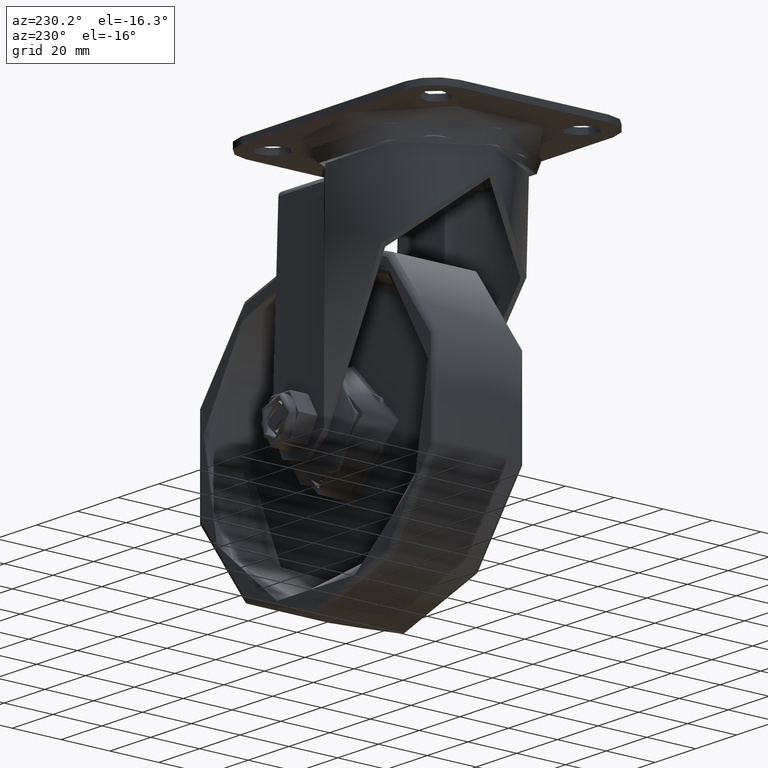
[diagram: clean part render]
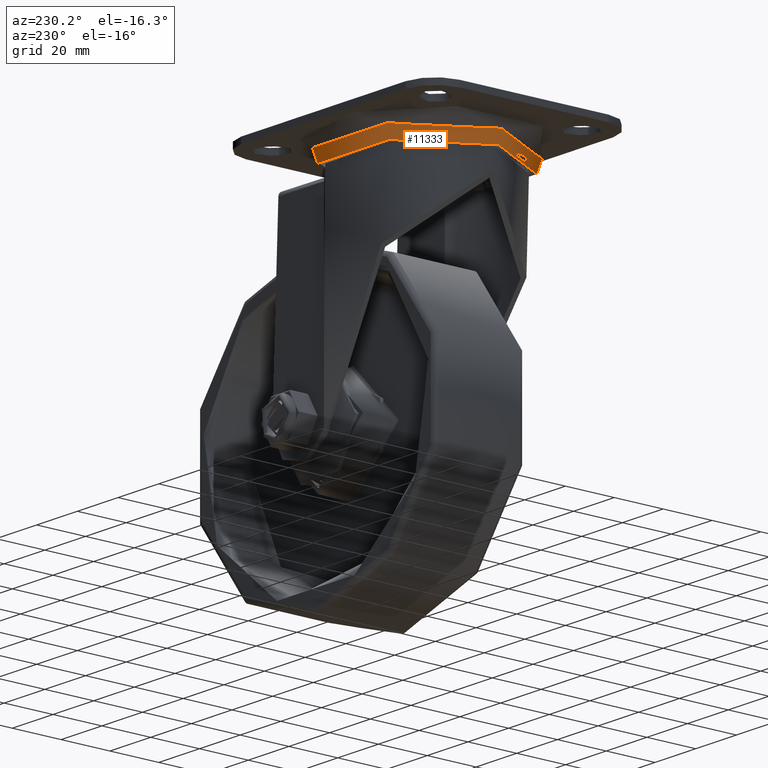
[diagram: same view with one face highlighted and labeled with its STEP entity id]
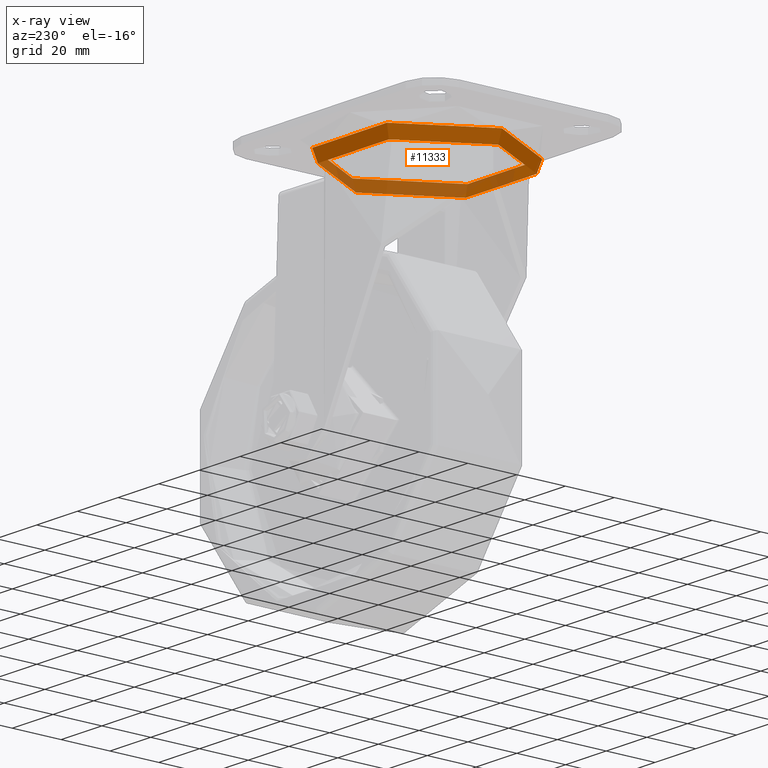
[diagram: x-ray of the same camera — body ghosted, the highlighted face saturated]
A machine part, auxiliary view. The second image highlights one B-rep face of the part: STEP entity #11333.
The next image is the same camera in x-ray: the body ghosted, the highlighted face saturated — about 32% of this face is hidden behind the body in this view.
In plain terms, the highlighted conical surface has half-angle 19.29 deg.
Its self-contained STEP definition (entity closure, byte-faithful):
#1374=CONICAL_SURFACE('',#12279,35.846929178183,0.336674819386727);
#1519=FACE_OUTER_BOUND('',#2245,.T.);
#2245=EDGE_LOOP('',(#8236,#8237,#8238,#8239));
#3108=LINE('',#17089,#3850);
#3850=VECTOR('',#13625,35.846929178183);
#4513=CIRCLE('',#12273,36.721929178183);
#4516=CIRCLE('',#12278,34.971929178183);
#5046=VERTEX_POINT('',#17075);
#5049=VERTEX_POINT('',#17085);
#6256=EDGE_CURVE('',#5046,#5046,#4513,.T.);
#6262=EDGE_CURVE('',#5049,#5049,#4516,.T.);
#6263=EDGE_CURVE('',#5046,#5049,#3108,.T.);
#8236=ORIENTED_EDGE('',*,*,#6256,.T.);
#8237=ORIENTED_EDGE('',*,*,#6263,.T.);
#8238=ORIENTED_EDGE('',*,*,#6262,.F.);
#8239=ORIENTED_EDGE('',*,*,#6263,.F.);
#11333=ADVANCED_FACE('',(#1519),#1374,.T.);
#12273=AXIS2_PLACEMENT_3D('',#17076,#13608,#13609);
#12278=AXIS2_PLACEMENT_3D('',#17087,#13621,#13622);
#12279=AXIS2_PLACEMENT_3D('',#17088,#13623,#13624);
#13608=DIRECTION('center_axis',(0.,0.,-1.));
#13609=DIRECTION('ref_axis',(-1.,0.,0.));
#13621=DIRECTION('center_axis',(0.,0.,-1.));
#13622=DIRECTION('ref_axis',(-1.,0.,0.));
#13623=DIRECTION('center_axis',(0.,0.,1.));
#13624=DIRECTION('ref_axis',(-1.,0.,0.));
#13625=DIRECTION('',(-0.330350424728106,-4.04562590240244E-17,-0.943858356366018));
#17075=CARTESIAN_POINT('',(36.721929178183,4.49713930265776E-15,-4.16517521236407));
#17076=CARTESIAN_POINT('Origin',(0.,0.,-4.16517521236407));
#17085=CARTESIAN_POINT('',(34.971929178183,4.28282611280697E-15,-9.16517521236406));
#17087=CARTESIAN_POINT('Origin',(0.,0.,-9.16517521236406));
#17088=CARTESIAN_POINT('Origin',(0.,0.,-6.66517521236407));
#17089=CARTESIAN_POINT('',(35.846929178183,4.38998270773237E-15,-6.66517521236407));